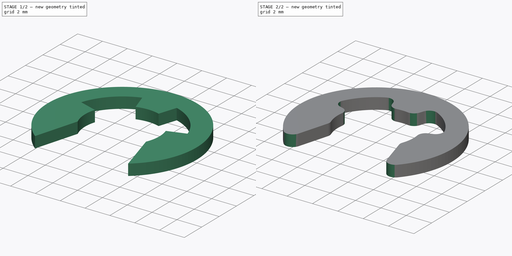
[diagram: build sequence overview — one tinted view per stage of 2, left to right]
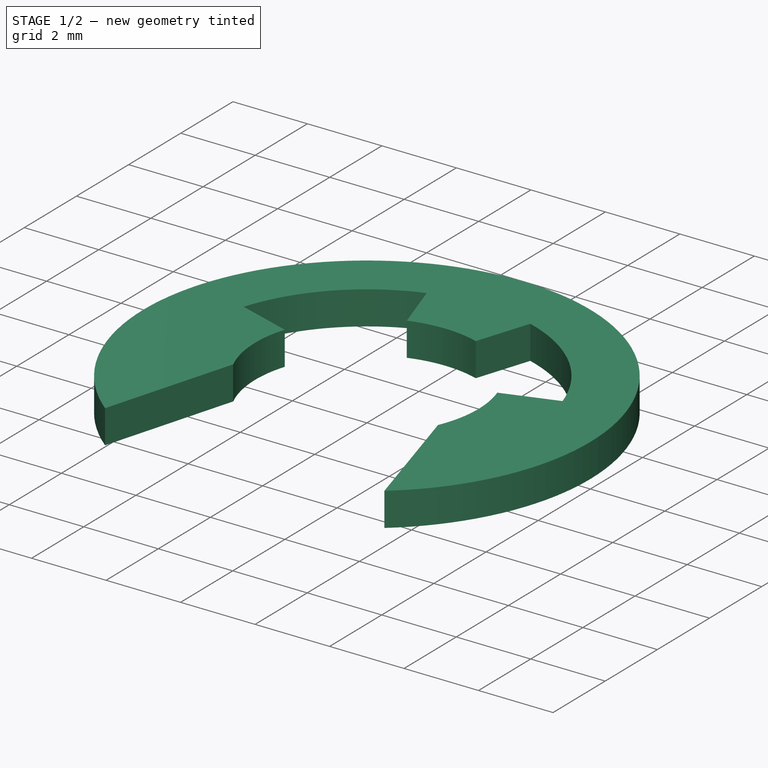
[diagram: stage 1 of 2 — iso view after this stage's code; geometry added in this stage tinted green]
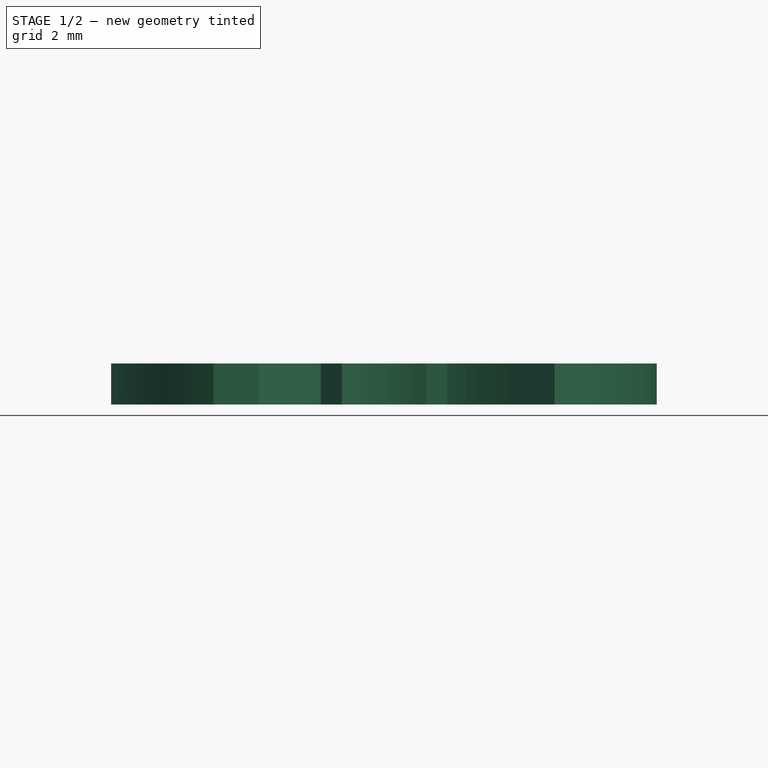
[diagram: stage 1 of 2 — front view after this stage's code; geometry added in this stage tinted green]
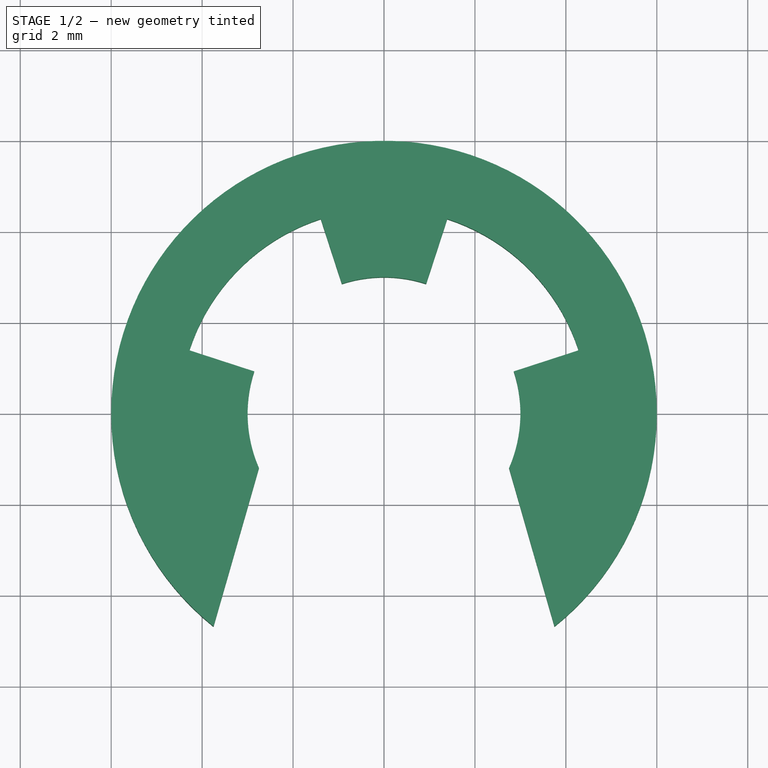
[diagram: stage 1 of 2 — top view after this stage's code; geometry added in this stage tinted green]
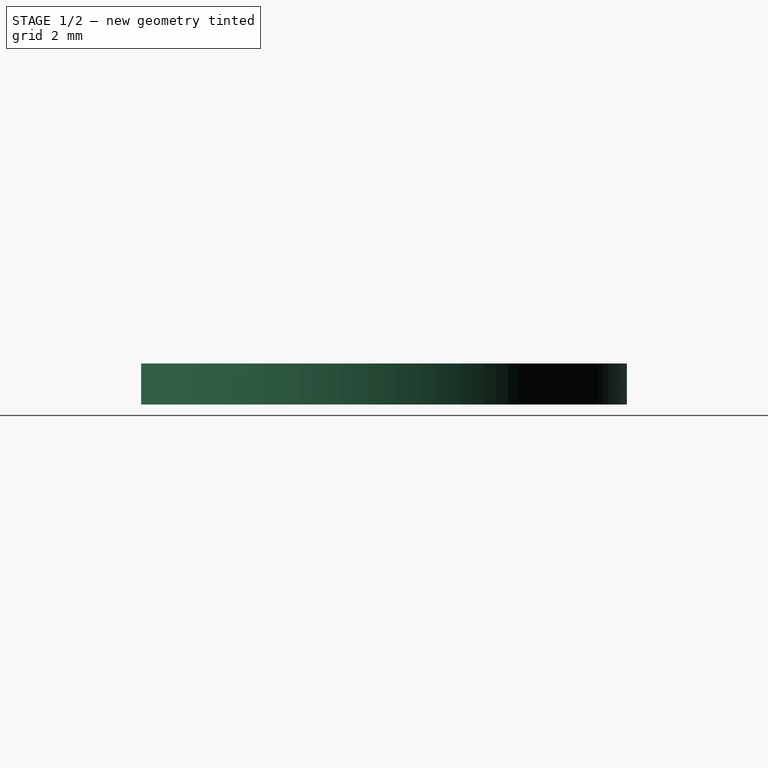
[diagram: stage 1 of 2 — right view after this stage's code; geometry added in this stage tinted green]
FCSTD DOCUMENT  (FreeCAD 0.16R6703 (Git))
Label: E_clip_6mm
License: CreativeCommons Attribution-ShareAlike
LicenseURL: http://creativecommons.org/licenses/by-sa/4.0/
objects: Sketcher::SketchObject×1, PartDesign::Pad×1, PartDesign::Fillet×1
note: 4 computed .brp shape members not serialized (recipe doc carries the construction recipe); baked Part::Feature solids carry a one-line shape summary decoded from their .brp

FEATURE [Sketcher::SketchObject] Sketch
  sketch-geometry (16):
    g0: ArcOfCircle CenterX=0 CenterY=0 CenterZ=0 NormalX=0 NormalY=0 NormalZ=1 Radius=6 StartAngle=5.38739 EndAngle=10.3206
    g1: ArcOfCircle CenterX=0 CenterY=0 CenterZ=0 NormalX=0 NormalY=0 NormalZ=1 Radius=4.5 StartAngle=1.88496 EndAngle=2.82743
    g2: ArcOfCircle CenterX=0 CenterY=0 CenterZ=0 NormalX=0 NormalY=0 NormalZ=1 Radius=4.5 StartAngle=0.314159 EndAngle=1.25664
    g3: ArcOfCircle CenterX=0 CenterY=0 CenterZ=0 NormalX=0 NormalY=0 NormalZ=1 Radius=3 StartAngle=2.82743 EndAngle=3.55273
    g4: ArcOfCircle CenterX=0 CenterY=0 CenterZ=0 NormalX=0 NormalY=0 NormalZ=1 Radius=3 StartAngle=5.87205 EndAngle=6.59734
    g5: ArcOfCircle CenterX=0 CenterY=0 CenterZ=0 NormalX=0 NormalY=0 NormalZ=1 Radius=3 StartAngle=1.25664 EndAngle=1.88496
    g6: LineSegment [constr] StartX=0 StartY=0 StartZ=0 EndX=-4.27975 EndY=1.39058 EndZ=0
    g7: LineSegment [constr] StartX=0 StartY=0 StartZ=0 EndX=4.27975 EndY=1.39058 EndZ=0
    g8: LineSegment [constr] StartX=0 StartY=0 StartZ=0 EndX=1.39058 EndY=4.27975 EndZ=0
    g9: LineSegment [constr] StartX=0 StartY=0 StartZ=0 EndX=-1.39058 EndY=4.27975 EndZ=0
    g10: LineSegment StartX=-2.85317 StartY=0.927051 StartZ=0 EndX=-4.27975 EndY=1.39058 EndZ=0
    g11: LineSegment StartX=-0.927051 StartY=2.85317 StartZ=0 EndX=-1.39058 EndY=4.27975 EndZ=0
    g12: LineSegment StartX=0.927051 StartY=2.85317 StartZ=0 EndX=1.39058 EndY=4.27975 EndZ=0
    g13: LineSegment StartX=4.27975 StartY=1.39058 StartZ=0 EndX=2.85317 EndY=0.927051 EndZ=0
    g14: LineSegment StartX=2.75 StartY=-1.19896 StartZ=0 EndX=3.74939 EndY=-4.68424 EndZ=0
    g15: LineSegment StartX=-2.75 StartY=-1.19896 StartZ=0 EndX=-3.74939 EndY=-4.68424 EndZ=0
  constraints (47):
    c: Coincident(g0,g-1)
    c: Radius(g0) = 6
    c: Coincident(g1,g-1)
    c: Coincident(g3,g-1)
    c: Coincident(g4,g-1)
    c: Coincident(g2,g-1)
    c: Radius(g2) = 4.5
    c: Radius(g4) = 3
    c: DistanceX(g3,g4) = 5.5
    c: Coincident(g5,g-1)
    c: Angle(g4,g-1) = 2.82743
    c: Angle(g-1,g3) = 2.82743
    c: Equal(g2,g1)
    c: Equal(g4,g5)
    c: Equal(g5,g3)
    c: Angle(g3,g4) = 0.558505
    c: Coincident(g6,g-1)
    c: Coincident(g6,g1)
    c: PointOnObject(g3,g6)
    c: Coincident(g7,g-1)
    c: Coincident(g7,g2)
    c: PointOnObject(g4,g7)
    c: Angle(g-1,g7) = 0.314159
    c: Angle(g-1,g6) = 2.82743
    c: Coincident(g8,g-1)
    c: Coincident(g8,g2)
    c: PointOnObject(g5,g8)
    c: Coincident(g9,g-1)
    c: Coincident(g9,g1)
    c: PointOnObject(g5,g9)
    c: Coincident(g10,g3)
    c: Coincident(g10,g1)
    c: Coincident(g11,g5)
    c: Coincident(g11,g1)
    c: Coincident(g12,g5)
    c: Coincident(g12,g2)
    c: Coincident(g13,g2)
    c: Coincident(g13,g4)
    c: Coincident(g14,g4)
    c: Coincident(g14,g0)
    c: Coincident(g15,g3)
    c: Coincident(g15,g0)
    c: Symmetric(g5,g5,g-2)
    c: Angle(g8,g9) = 0.628319
    c: Angle(g15,g14) = 0.558505
    c: Symmetric(g0,g0,g-2)
    c: Equal(g15,g14)
FEATURE [PartDesign::Pad] Pad
  Length = 0.9
  Length2 = 100
  Sketch = -> Sketch
  Type = 0
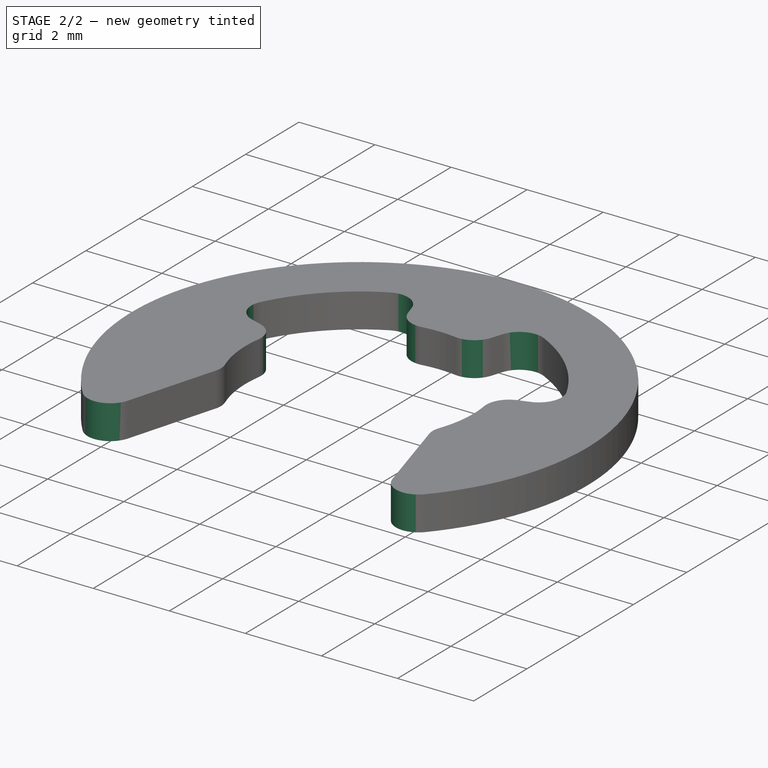
[diagram: stage 2 of 2 — iso view after this stage's code; geometry added in this stage tinted green]
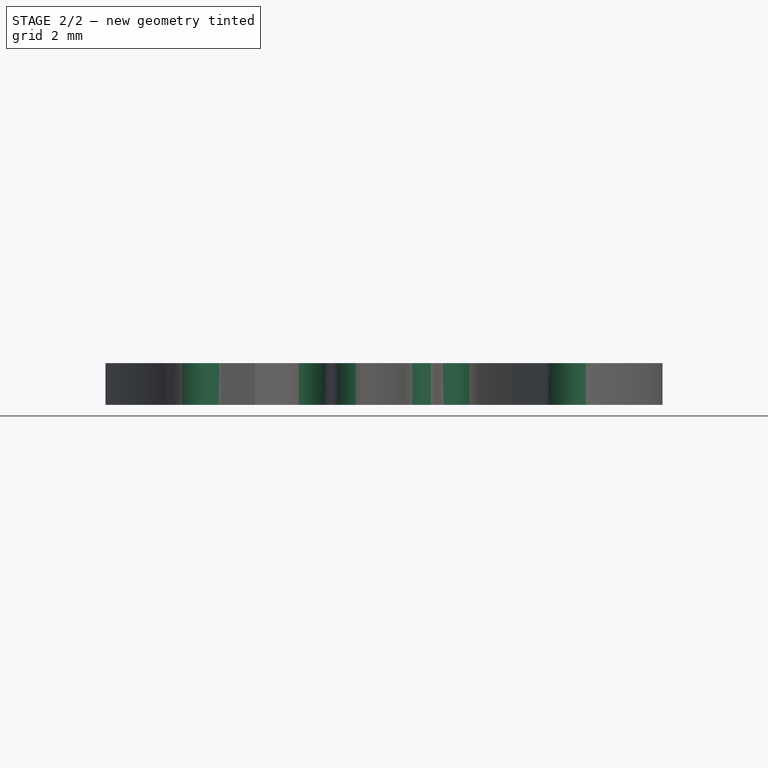
[diagram: stage 2 of 2 — front view after this stage's code; geometry added in this stage tinted green]
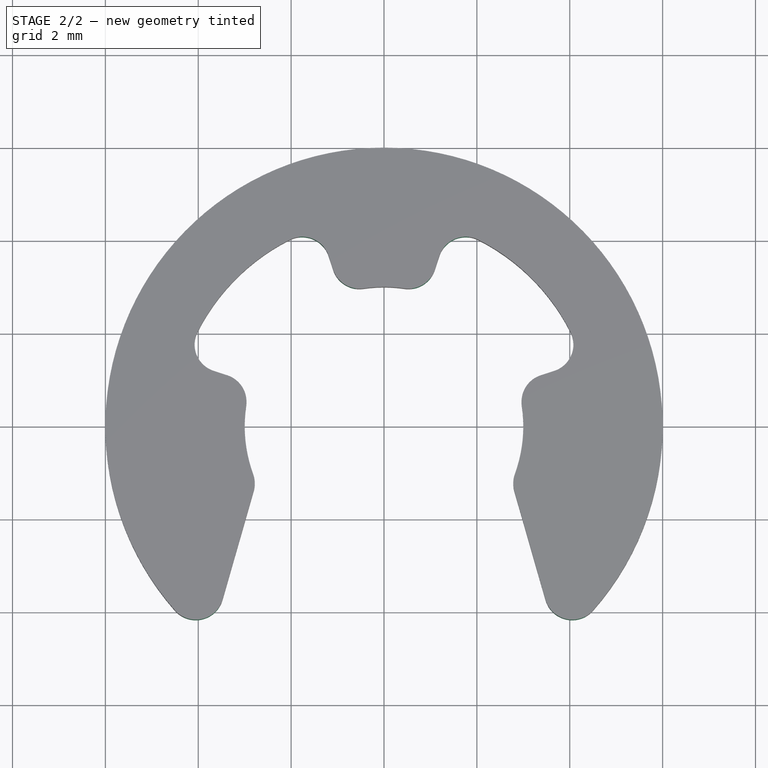
[diagram: stage 2 of 2 — top view after this stage's code; geometry added in this stage tinted green]
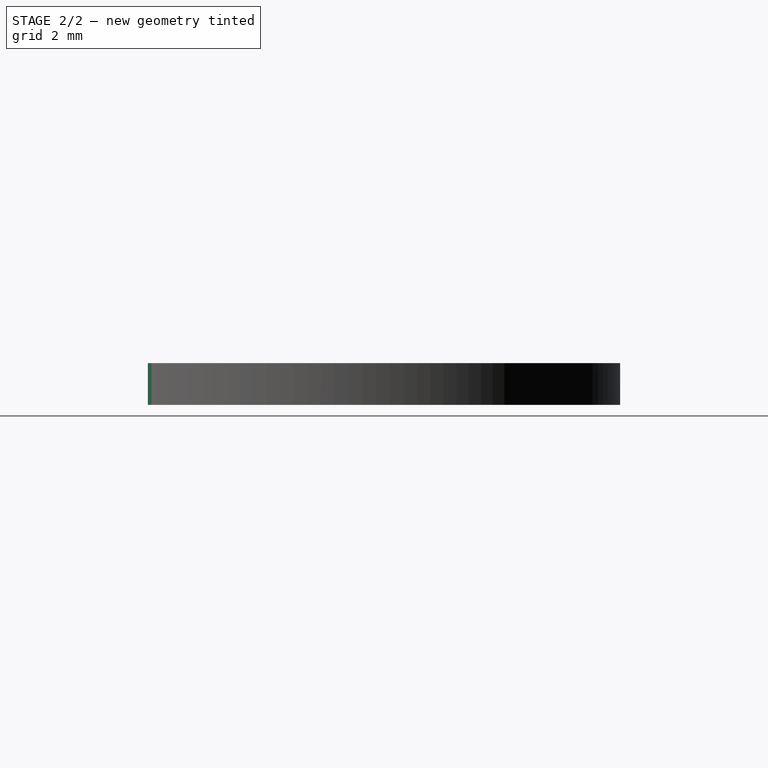
[diagram: stage 2 of 2 — right view after this stage's code; geometry added in this stage tinted green]
FEATURE [PartDesign::Fillet] Fillet
  Base = -> Pad [Edge2,Edge1,Edge32,Edge29,Edge26,Edge23,Edge20,Edge17,Edge14,Edge11,Edge8,Edge5]
  Radius = 0.6
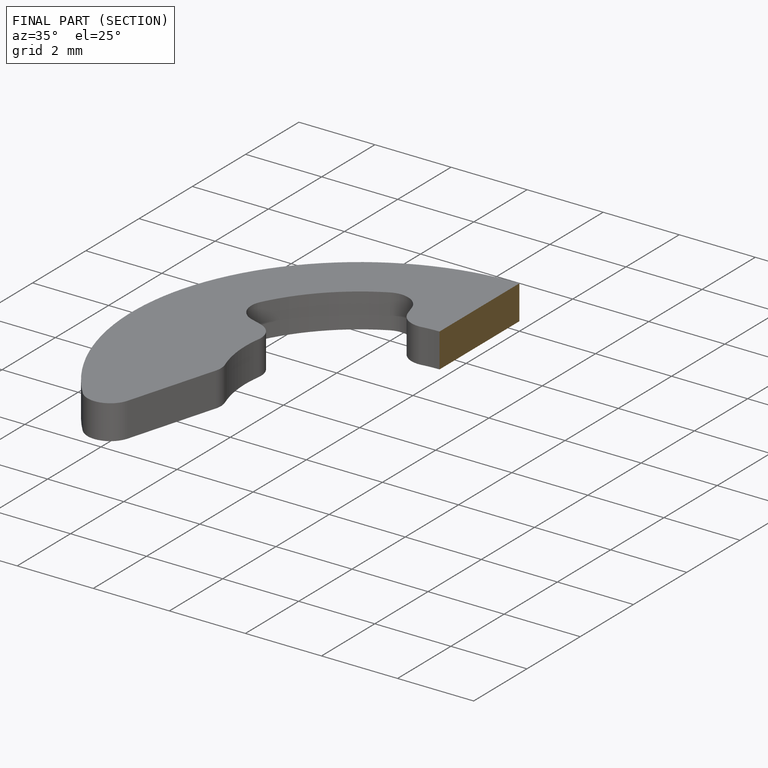
[diagram: finished part — half-section view (interior)]
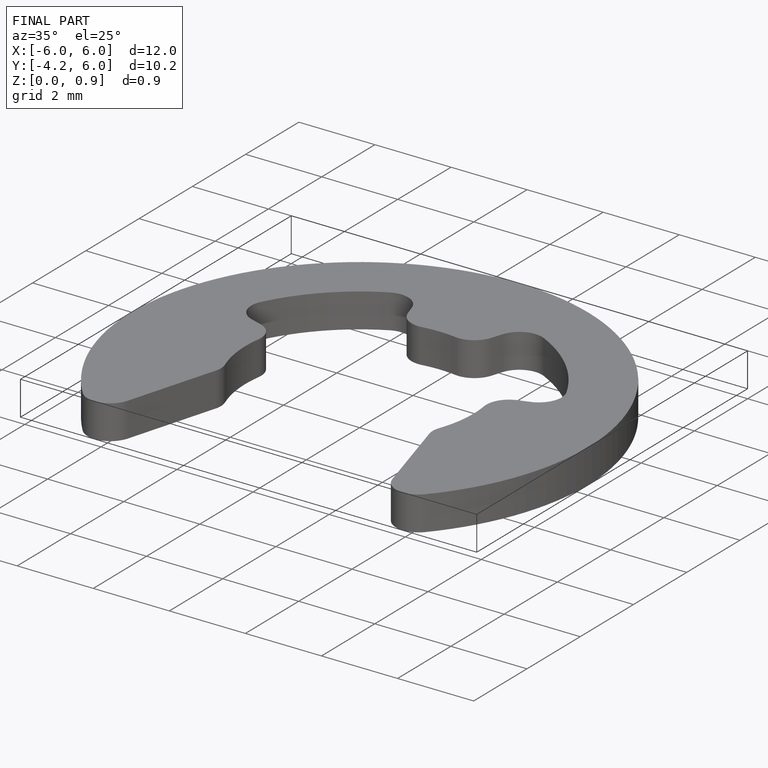
[diagram: finished part — iso view with bounding-box wireframe]
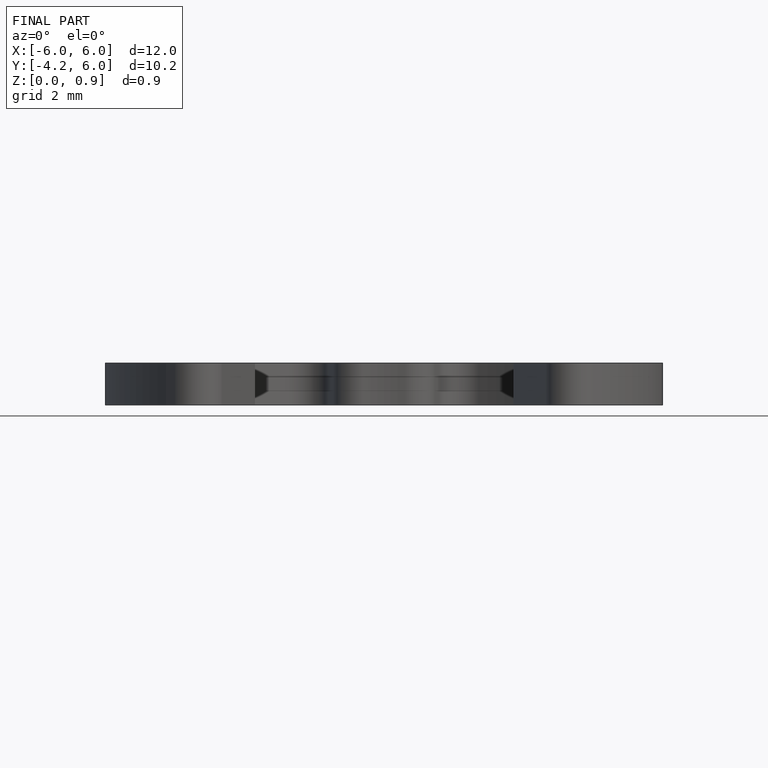
[diagram: finished part — front view with bounding-box wireframe]
